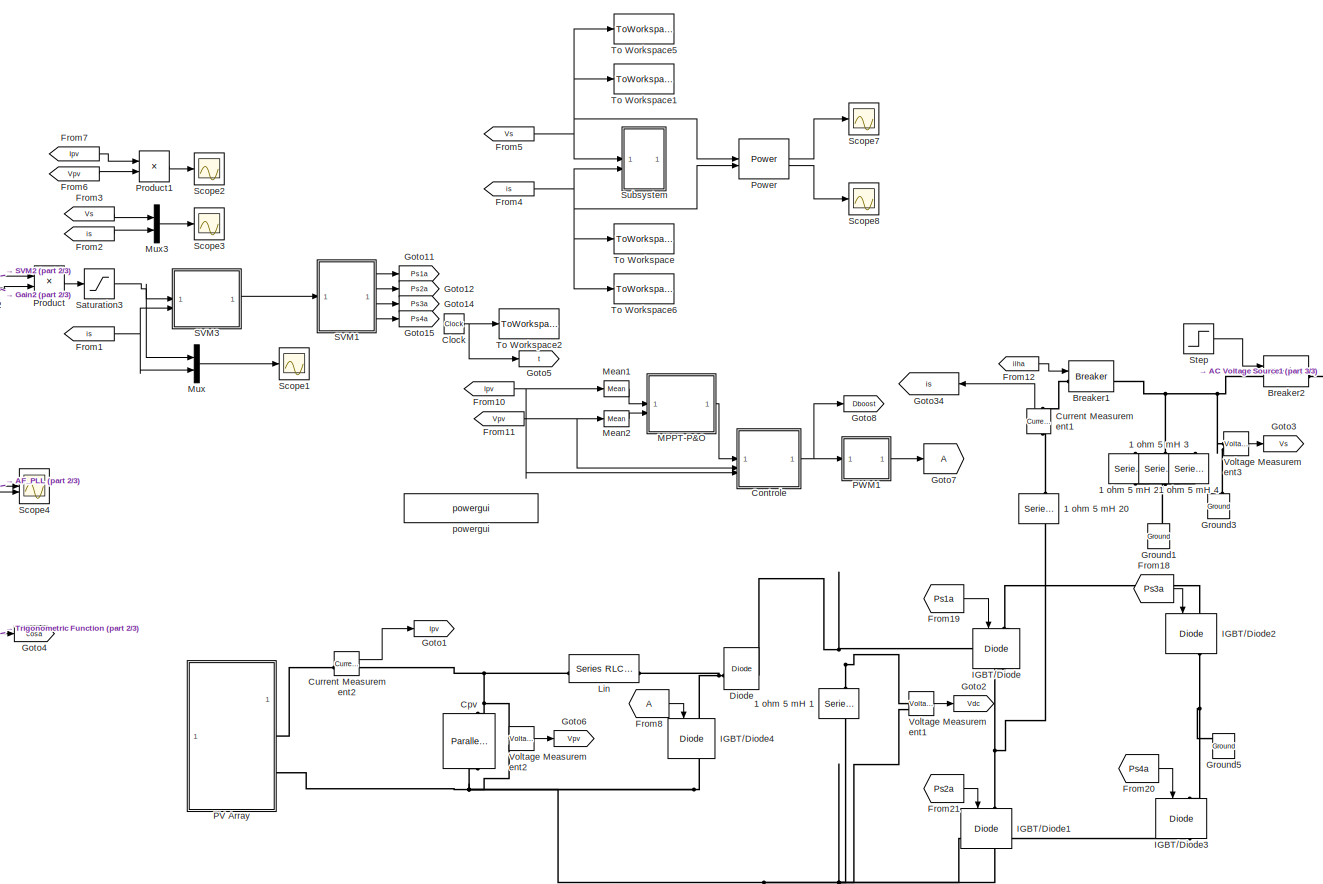
[diagram: root canvas - part 1/3, center side, full height]
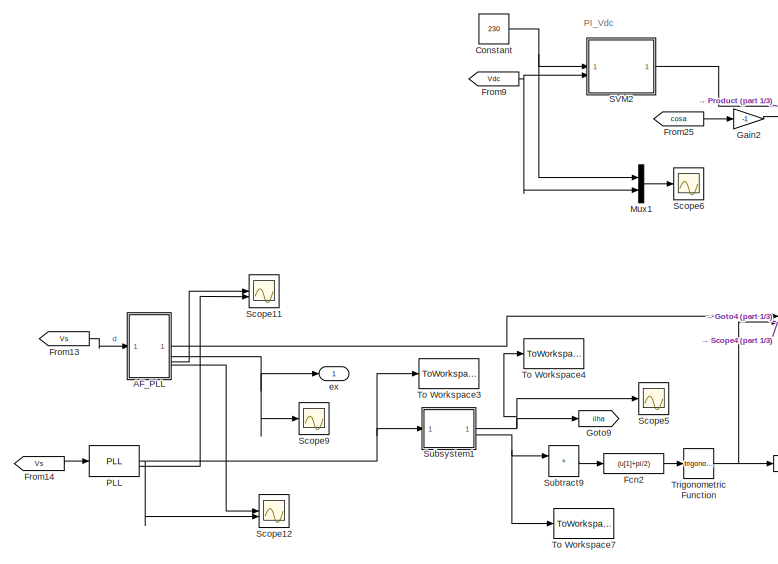
[diagram: root canvas - part 2/3, middle left region]
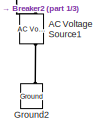
[diagram: root canvas - part 3/3, middle right region]
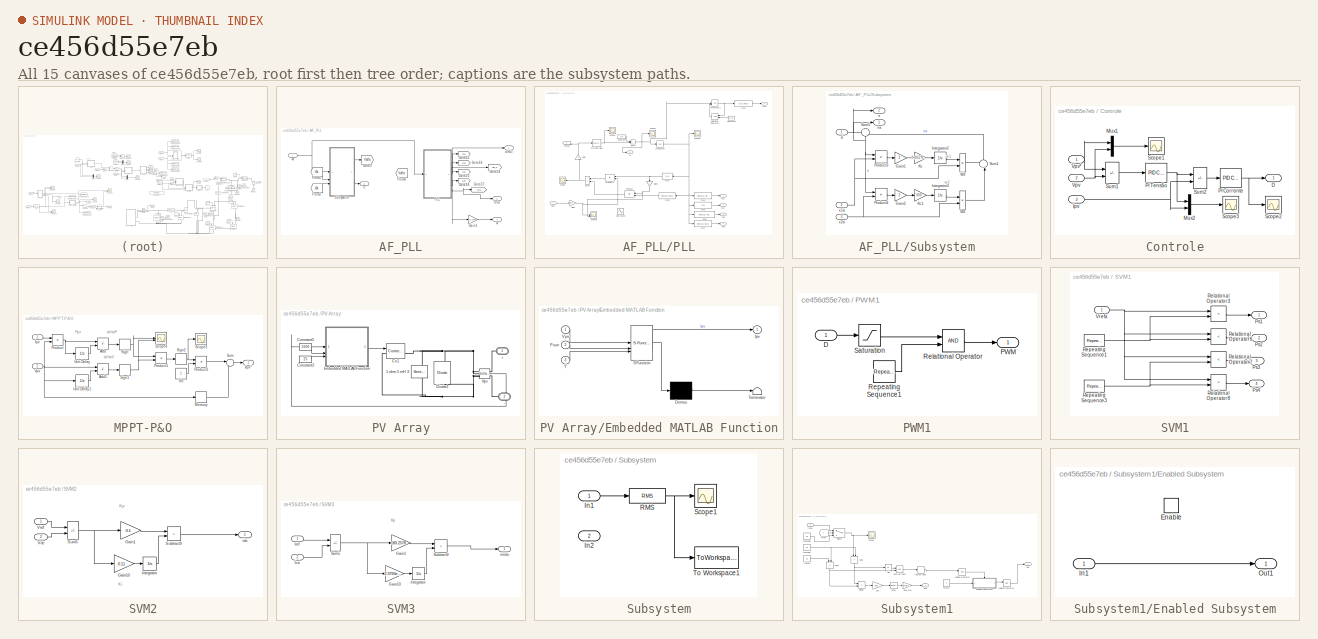
[diagram: thumbnail index - all 15 canvases of the model, root first then tree order]
MODEL slx_ce456d55e7eb
KIND model
CONFIG AbsTol = auto
CONFIG EnableMultiTasking = off
CONFIG FixedStep = auto
CONFIG MaxStep = 0.01
CONFIG MinStep = auto
CONFIG RelTol = 0.1e-3
CONFIG SampleTimeConstraint = Unconstrained
CONFIG SolverName = ode3
CONFIG StartTime = 0
CONFIG StopTime = T
BLOCK [Reference] 1 ohm 5 mH 1  REF=spsSeriesRLCBranchLib/Series RLC Branch
  AttributesFormatString = \n
  LibrarySourceBlock = sps_lib/Passives/Series RLC Branch
  NameLocation = left
  SourceBlock = spsSeriesRLCBranchLib/Series RLC Branch
  SourceType = Series RLC Branch
BLOCK [Reference] 1 ohm 5 mH 2  REF=spsSeriesRLCBranchLib/Series RLC Branch
  AttributesFormatString = \n
  LibrarySourceBlock = sps_lib/Passives/Series RLC Branch
  NameLocation = right
  SourceBlock = spsSeriesRLCBranchLib/Series RLC Branch
  SourceType = Series RLC Branch
BLOCK [Reference] 1 ohm 5 mH 20  REF=spsSeriesRLCBranchLib/Series RLC Branch
  AttributesFormatString = \n
  LibrarySourceBlock = sps_lib/Passives/Series RLC Branch
  NameLocation = right
  SourceBlock = spsSeriesRLCBranchLib/Series RLC Branch
  SourceType = Series RLC Branch
BLOCK [Reference] 1 ohm 5 mH 3  REF=spsSeriesRLCBranchLib/Series RLC Branch
  AttributesFormatString = \n
  LibrarySourceBlock = sps_lib/Passives/Series RLC Branch
  NameLocation = left
  SourceBlock = spsSeriesRLCBranchLib/Series RLC Branch
  SourceType = Series RLC Branch
BLOCK [Reference] 1 ohm 5 mH 4  REF=spsSeriesRLCBranchLib/Series RLC Branch
  AttributesFormatString = \n
  LibrarySourceBlock = sps_lib/Passives/Series RLC Branch
  NameLocation = left
  SourceBlock = spsSeriesRLCBranchLib/Series RLC Branch
  SourceType = Series RLC Branch
BLOCK [Reference] AC Voltage Source1  REF=spsACVoltageSourceLib/AC Voltage Source
  LibrarySourceBlock = sps_lib/Sources/AC Voltage Source
  NameLocation = left
  SourceBlock = spsACVoltageSourceLib/AC Voltage Source
  SourceType = AC Voltage Source
BLOCK [SubSystem] AF_PLL
BLOCK [From] AF_PLL/From1
  GotoTag = x1a
  TagVisibility = global
BLOCK [From] AF_PLL/From2
  GotoTag = x2a
  TagVisibility = global
BLOCK [From] AF_PLL/From4
  GotoTag = Valfa
BLOCK [Gain] AF_PLL/Gain1
  Gain = 1/(2*pi)
  NameLocation = top
BLOCK [Goto] AF_PLL/Goto3
  GotoTag = Valfa
BLOCK [Goto] AF_PLL/Goto35
  GotoTag = x1b
BLOCK [Goto] AF_PLL/Goto36
  GotoTag = x2b
BLOCK [Goto] AF_PLL/Goto37
  GotoTag = teta
BLOCK [Goto] AF_PLL/Goto45
  GotoTag = x1a
  TagVisibility = global
BLOCK [Goto] AF_PLL/Goto46
  GotoTag = x2a
  TagVisibility = global
BLOCK [Goto] AF_PLL/Goto54
  GotoTag = Sen_a
  TagVisibility = global
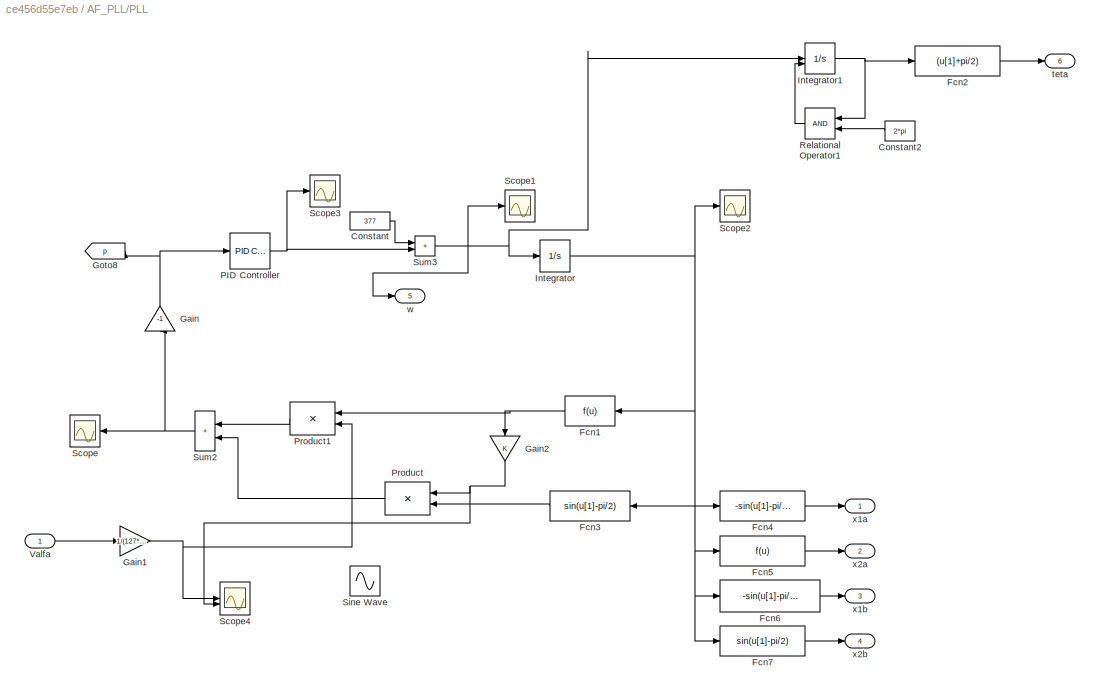
BLOCK [SubSystem] AF_PLL/PLL
BLOCK [Constant] AF_PLL/PLL/Constant
  SampleTime = -1
  Value = 377
BLOCK [Constant] AF_PLL/PLL/Constant2
  NameLocation = top
  Value = 2*pi
BLOCK [Fcn] AF_PLL/PLL/Fcn1
  NameLocation = top
BLOCK [Fcn] AF_PLL/PLL/Fcn2
  Expr = (u[1]+pi/2)
BLOCK [Fcn] AF_PLL/PLL/Fcn3
  Expr = sin(u[1]-pi/2)
  NameLocation = top
BLOCK [Fcn] AF_PLL/PLL/Fcn4
  Expr = -sin(u[1]-pi/2)
BLOCK [Fcn] AF_PLL/PLL/Fcn5
BLOCK [Fcn] AF_PLL/PLL/Fcn6
  Expr = -sin(u[1]-pi/2-pi/2)
BLOCK [Fcn] AF_PLL/PLL/Fcn7
  Expr = sin(u[1]-pi/2)
BLOCK [Gain] AF_PLL/PLL/Gain
  Gain = -1
  NameLocation = left
BLOCK [Gain] AF_PLL/PLL/Gain1
  Gain = 1/(127*sqrt(2))
  NameLocation = top
BLOCK [Gain] AF_PLL/PLL/Gain2
  NameLocation = left
BLOCK [Goto] AF_PLL/PLL/Goto8
  GotoTag = p
  NameLocation = top
BLOCK [Integrator] AF_PLL/PLL/Integrator
BLOCK [Integrator] AF_PLL/PLL/Integrator1
  ExternalReset = rising
  InitialCondition = -pi/2
BLOCK [Reference] AF_PLL/PLL/PID Controller  REF=slpidlib/PID Controller
  SourceBlock = slpidlib/PID Controller
  SourceType = PID 1dof
BLOCK [Product] AF_PLL/PLL/Product
  InputSameDT = on
  NameLocation = top
  OutDataTypeStr = Inherit: Same as first input
  RndMeth = Zero
  SaturateOnIntegerOverflow = on
BLOCK [Product] AF_PLL/PLL/Product1
  InputSameDT = on
  NameLocation = top
  OutDataTypeStr = Inherit: Same as first input
  RndMeth = Zero
  SaturateOnIntegerOverflow = on
BLOCK [RelationalOperator] AF_PLL/PLL/Relational Operator1
  InputSameDT = off
  NameLocation = top
  OutDataTypeStr = boolean
  RndMeth = Simplest
BLOCK [Scope] AF_PLL/PLL/Scope
  Floating = off
  NameLocation = top
  NumInputPorts = 1
  ScopeSpecificationString = Simulink.scopes.TimeScopeBlockCfg('CurrentConfiguration', extmgr.ConfigurationSet(extmgr.Configuration('Core','General UI',true),extmgr.Configuration('Core','Source UI',true),extmgr.Configuration('Sources','WiredSimulink',true,'DataLoggingSaveFormat','StructureWithTime','DataLoggingDecimation','1','DataLoggingDecimateData',true),extmgr.Configuration('Visuals','Time Domain',true,'SerializedDisplays...<+1673ch>
BLOCK [Scope] AF_PLL/PLL/Scope1
  Floating = off
  NumInputPorts = 1
  ScopeSpecificationString = Simulink.scopes.TimeScopeBlockCfg('CurrentConfiguration', extmgr.ConfigurationSet(extmgr.Configuration('Core','General UI',true),extmgr.Configuration('Core','Source UI',true),extmgr.Configuration('Sources','WiredSimulink',true,'DataLoggingSaveFormat','StructureWithTime','DataLoggingLimitDataPoints',true,'DataLoggingDecimation','1','DataLoggingDecimateData',true,'DataLoggingVariableName','ScopeData...<+1760ch>
BLOCK [Scope] AF_PLL/PLL/Scope2
  Floating = off
  NumInputPorts = 1
  ScopeSpecificationString = Simulink.scopes.TimeScopeBlockCfg('CurrentConfiguration', extmgr.ConfigurationSet(extmgr.Configuration('Core','General UI',true),extmgr.Configuration('Core','Source UI',true),extmgr.Configuration('Sources','WiredSimulink',true,'DataLoggingSaveFormat','StructureWithTime','DataLoggingLimitDataPoints',true,'DataLoggingDecimation','1','DataLoggingDecimateData',true,'DataLoggingVariableName','ScopeData...<+1731ch>
BLOCK [Scope] AF_PLL/PLL/Scope3
  Floating = off
  NumInputPorts = 1
  ScopeSpecificationString = Simulink.scopes.TimeScopeBlockCfg('CurrentConfiguration', extmgr.ConfigurationSet(extmgr.Configuration('Core','General UI',true),extmgr.Configuration('Core','Source UI',true),extmgr.Configuration('Sources','WiredSimulink',true,'DataLoggingSaveFormat','StructureWithTime','DataLoggingLimitDataPoints',true,'DataLoggingDecimation','1','DataLoggingDecimateData',true,'DataLoggingVariableName','ScopeData...<+1743ch>
BLOCK [Scope] AF_PLL/PLL/Scope4
  Floating = off
  NumInputPorts = 2
  ScopeSpecificationString = Simulink.scopes.TimeScopeBlockCfg('CurrentConfiguration', extmgr.ConfigurationSet(extmgr.Configuration('Core','General UI',true),extmgr.Configuration('Core','Source UI',true),extmgr.Configuration('Sources','WiredSimulink',true,'DataLoggingSaveFormat','StructureWithTime','DataLoggingDecimation','1','DataLoggingDecimateData',true,'DataLoggingVariableName','ScopeData8'),extmgr.Configuration('Visuals'...<+1669ch>
BLOCK [Sin] AF_PLL/PLL/Sine Wave
  Frequency = 2*pi*60
  SampleTime = 0
BLOCK [Sum] AF_PLL/PLL/Sum2
  IconShape = rectangular
  InputSameDT = on
  NameLocation = top
  OutDataTypeStr = Inherit: Same as first input
  SaturateOnIntegerOverflow = on
BLOCK [Sum] AF_PLL/PLL/Sum3
  IconShape = rectangular
  InputSameDT = on
  OutDataTypeStr = Inherit: Same as first input
  SaturateOnIntegerOverflow = on
BLOCK [Inport] AF_PLL/PLL/Valfa
BLOCK [Outport] AF_PLL/PLL/teta
  Port = 6
BLOCK [Outport] AF_PLL/PLL/w
  Port = 5
BLOCK [Outport] AF_PLL/PLL/x1a
BLOCK [Outport] AF_PLL/PLL/x1b
  Port = 3
BLOCK [Outport] AF_PLL/PLL/x2a
  Port = 2
BLOCK [Outport] AF_PLL/PLL/x2b
  Port = 4
BLOCK [SubSystem] AF_PLL/Subsystem
BLOCK [Gain] AF_PLL/Subsystem/Gain1
  Gain = 2
BLOCK [Gain] AF_PLL/Subsystem/Gain2
  Gain = 2
BLOCK [Integrator] AF_PLL/Subsystem/Integrator2
BLOCK [Integrator] AF_PLL/Subsystem/Integrator3
BLOCK [Gain] AF_PLL/Subsystem/Kc
  Gain = 0.005*60e3
BLOCK [Gain] AF_PLL/Subsystem/Kc1
  Gain = 300
BLOCK [Product] AF_PLL/Subsystem/Product3
BLOCK [Product] AF_PLL/Subsystem/Product4
BLOCK [Sum] AF_PLL/Subsystem/Sum1
  Inputs = ++|
  NameLocation = right
BLOCK [Sum] AF_PLL/Subsystem/Sum5
  Inputs = +-
  NameLocation = left
BLOCK [Product] AF_PLL/Subsystem/W2
BLOCK [Product] AF_PLL/Subsystem/W3
BLOCK [Inport] AF_PLL/Subsystem/d
BLOCK [Outport] AF_PLL/Subsystem/e
  Port = 2
BLOCK [Outport] AF_PLL/Subsystem/va
BLOCK [Inport] AF_PLL/Subsystem/x1a
  Port = 2
BLOCK [Inport] AF_PLL/Subsystem/x2a
  Port = 3
BLOCK [Outport] AF_PLL/cosa2
BLOCK [Outport] AF_PLL/e
  Port = 2
BLOCK [Outport] AF_PLL/teta
  Port = 3
BLOCK [Inport] AF_PLL/va
BLOCK [Outport] AF_PLL/w
  Port = 4
BLOCK [Reference] Breaker1  REF=spsBreakerLib/Breaker
  LibrarySourceBlock = sps_lib/Power Grid Elements/Breaker
  SourceBlock = spsBreakerLib/Breaker
  SourceType = Breaker
BLOCK [Reference] Breaker2  REF=spsBreakerLib/Breaker
  LibrarySourceBlock = sps_lib/Power Grid Elements/Breaker
  SourceBlock = spsBreakerLib/Breaker
  SourceType = Breaker
BLOCK [Clock] Clock
  Decimation = 1
BLOCK [Constant] Constant
  SampleTime = -1
  Value = 230
BLOCK [SubSystem] Controle
BLOCK [Outport] Controle/D
BLOCK [Inport] Controle/Ipv
  Port = 3
BLOCK [Mux] Controle/Mux1
  DisplayOption = bar
  Inputs = 2
BLOCK [Mux] Controle/Mux2
  DisplayOption = bar
  Inputs = 2
BLOCK [Reference] Controle/PI Corrente  REF=slpidlib/PID Controller
  SourceBlock = slpidlib/PID Controller
  SourceType = PID 1dof
BLOCK [Reference] Controle/PI Tensão  REF=slpidlib/PID Controller
  SourceBlock = slpidlib/PID Controller
  SourceType = PID 1dof
BLOCK [Scope] Controle/Scope1
  Floating = off
  NumInputPorts = 1
  ScopeSpecificationString = C++SS(StrPVP('Location','[11, 61, 806, 606]'),StrPVP('Open','off'),MxPVP('AxesTitles',54,'struct(''axes1'',''%<SignalLabel>'')'),MxPVP('ScopeGraphics',57,'struct(''FigureColor'',''[0.501960784313725 0.501960784313725 0.501960784313725]'',''AxesColor'',''[1 1 1]'',''AxesTickColor'',''[0 0 0]'',''LineColors'',''[0 0 1;1 0 1;0 1 1;1 0 0;0 1 0;0 0 1]'',''LineStyles'',''-|-|-|-|-|-'',''LineWidths'',''[...<+365ch>
BLOCK [Scope] Controle/Scope2
  Floating = off
  NumInputPorts = 1
  ScopeSpecificationString = Simulink.scopes.TimeScopeBlockCfg('CurrentConfiguration', extmgr.ConfigurationSet(extmgr.Configuration('Core','General UI',true,'FigureColor',[0.501960784313725 0.501960784313725 0.501960784313725]),extmgr.Configuration('Core','Source UI',true),extmgr.Configuration('Sources','WiredSimulink',true,'DataLogging',true,'DataLoggingVariableName','inc3','DataLoggingSaveFormat','Array','DataLoggingDecimat...<+2869ch>
BLOCK [Scope] Controle/Scope3
  Floating = off
  NumInputPorts = 1
  ScopeSpecificationString = C++SS(StrPVP('Location','[12, 63, 803, 606]'),StrPVP('Open','off'),MxPVP('AxesTitles',54,'struct(''axes1'',''%<SignalLabel>'')'),MxPVP('ScopeGraphics',57,'struct(''FigureColor'',''[0.501960784313725 0.501960784313725 0.501960784313725]'',''AxesColor'',''[1 1 1]'',''AxesTickColor'',''[0 0 0]'',''LineColors'',''[0 0 1;1 0 1;0 1 1;1 0 0;0 1 0;0 0 1]'',''LineStyles'',''-|-|-|-|-|-'',''LineWidths'',''[...<+365ch>
BLOCK [Sum] Controle/Sum1
  IconShape = rectangular
  InputSameDT = on
  Inputs = -+
  OutDataTypeStr = Inherit: Same as first input
  SaturateOnIntegerOverflow = on
BLOCK [Sum] Controle/Sum2
  IconShape = rectangular
  InputSameDT = on
  Inputs = +-
  OutDataTypeStr = Inherit: Same as first input
  SaturateOnIntegerOverflow = on
BLOCK [Inport] Controle/Vpv
  Port = 2
BLOCK [Inport] Controle/Vpv*
BLOCK [Reference] Cpv  REF=spsParallelRLCBranchLib/Parallel RLC Branch
  AttributesFormatString = \n
  LibrarySourceBlock = sps_lib/Passives/Parallel RLC Branch
  NameLocation = left
  SourceBlock = spsParallelRLCBranchLib/Parallel RLC Branch
  SourceType = Parallel RLC Branch
BLOCK [Reference] Current Measurement1  REF=spsCurrentMeasurementLib/Current Measurement
  LibrarySourceBlock = sps_lib/Sensors and Measurements/Current Measurement
  NameLocation = right
  SourceBlock = spsCurrentMeasurementLib/Current Measurement
  SourceType = Current Measurement
BLOCK [Reference] Current Measurement2  REF=spsCurrentMeasurementLib/Current Measurement
  LibrarySourceBlock = sps_lib/Sensors and Measurements/Current Measurement
  SourceBlock = spsCurrentMeasurementLib/Current Measurement
  SourceType = Current Measurement
BLOCK [Reference] Diode  REF=spsDiodeLib/Diode
  LibrarySourceBlock = sps_lib/Power Electronics/Diode
  SourceBlock = spsDiodeLib/Diode
  SourceType = Diode
BLOCK [Fcn] Fcn2
  Expr = (u[1]+pi/2)
BLOCK [From] From1
  GotoTag = is
BLOCK [From] From10
  GotoTag = Ipv
BLOCK [From] From11
  GotoTag = Vpv
BLOCK [From] From12
  GotoTag = ilha
BLOCK [From] From13
  GotoTag = Vs
BLOCK [From] From14
  GotoTag = Vs
BLOCK [From] From18
  GotoTag = Ps3a
BLOCK [From] From19
  GotoTag = Ps1a
BLOCK [From] From2
  GotoTag = is
BLOCK [From] From20
  GotoTag = Ps4a
BLOCK [From] From21
  GotoTag = Ps2a
BLOCK [From] From25
  GotoTag = cosa
BLOCK [From] From3
  GotoTag = Vs
BLOCK [From] From4
  GotoTag = is
BLOCK [From] From5
  GotoTag = Vs
BLOCK [From] From6
  GotoTag = Vpv
BLOCK [From] From7
  GotoTag = Ipv
BLOCK [From] From8
  NameLocation = top
BLOCK [From] From9
  GotoTag = Vdc
BLOCK [Gain] Gain2
  Gain = -1
BLOCK [Goto] Goto1
  GotoTag = Ipv
BLOCK [Goto] Goto11
  GotoTag = Ps1a
BLOCK [Goto] Goto12
  GotoTag = Ps2a
BLOCK [Goto] Goto14
  GotoTag = Ps3a
BLOCK [Goto] Goto15
  GotoTag = Ps4a
BLOCK [Goto] Goto2
  GotoTag = Vdc
BLOCK [Goto] Goto3
  GotoTag = Vs
BLOCK [Goto] Goto34
  GotoTag = is
  NameLocation = top
BLOCK [Goto] Goto4
  GotoTag = cosa
BLOCK [Goto] Goto5
  GotoTag = t
  TagVisibility = global
BLOCK [Goto] Goto6
  GotoTag = Vpv
BLOCK [Goto] Goto7
BLOCK [Goto] Goto8
  GotoTag = Dboost
BLOCK [Goto] Goto9
  GotoTag = ilha
BLOCK [Reference] Ground1  REF=spsGroundLib/Ground
  LibrarySourceBlock = sps_lib/Utilities/Ground
  NameLocation = right
  SourceBlock = spsGroundLib/Ground
  SourceType = Ground
BLOCK [Reference] Ground2  REF=spsGroundLib/Ground
  LibrarySourceBlock = sps_lib/Utilities/Ground
  NameLocation = right
  SourceBlock = spsGroundLib/Ground
  SourceType = Ground
BLOCK [Reference] Ground3  REF=spsGroundLib/Ground
  LibrarySourceBlock = sps_lib/Utilities/Ground
  NameLocation = right
  SourceBlock = spsGroundLib/Ground
  SourceType = Ground
BLOCK [Reference] Ground5  REF=spsGroundLib/Ground
  LibrarySourceBlock = sps_lib/Utilities/Ground
  NameLocation = right
  SourceBlock = spsGroundLib/Ground
  SourceType = Ground
BLOCK [Reference] IGBT//Diode  REF=spsIGBTDiodeLib/IGBT//Diode
  LibrarySourceBlock = sps_lib/Power Electronics/IGBT//Diode
  NameLocation = left
  SourceBlock = spsIGBTDiodeLib/IGBT//Diode
  SourceType = IGBT/Diode
BLOCK [Reference] IGBT//Diode1  REF=spsIGBTDiodeLib/IGBT//Diode
  LibrarySourceBlock = sps_lib/Power Electronics/IGBT//Diode
  NameLocation = left
  SourceBlock = spsIGBTDiodeLib/IGBT//Diode
  SourceType = IGBT/Diode
BLOCK [Reference] IGBT//Diode2  REF=spsIGBTDiodeLib/IGBT//Diode
  LibrarySourceBlock = sps_lib/Power Electronics/IGBT//Diode
  NameLocation = left
  SourceBlock = spsIGBTDiodeLib/IGBT//Diode
  SourceType = IGBT/Diode
BLOCK [Reference] IGBT//Diode3  REF=spsIGBTDiodeLib/IGBT//Diode
  LibrarySourceBlock = sps_lib/Power Electronics/IGBT//Diode
  NameLocation = left
  SourceBlock = spsIGBTDiodeLib/IGBT//Diode
  SourceType = IGBT/Diode
BLOCK [Reference] IGBT//Diode4  REF=spsIGBTDiodeLib/IGBT//Diode
  LibrarySourceBlock = sps_lib/Power Electronics/IGBT//Diode
  NameLocation = left
  SourceBlock = spsIGBTDiodeLib/IGBT//Diode
  SourceType = IGBT/Diode
BLOCK [Reference] Lin  REF=spsSeriesRLCBranchLib/Series RLC Branch
  LibrarySourceBlock = sps_lib/Passives/Series RLC Branch
  SourceBlock = spsSeriesRLCBranchLib/Series RLC Branch
  SourceType = Series RLC Branch
BLOCK [SubSystem] MPPT-P&O
BLOCK [Sum] MPPT-P&O/Add
  IconShape = rectangular
  Inputs = +-
BLOCK [Sum] MPPT-P&O/Add1
  IconShape = rectangular
  Inputs = +-
BLOCK [Constant] MPPT-P&O/Inc
BLOCK [Inport] MPPT-P&O/Ipv
  NameLocation = top
BLOCK [Memory] MPPT-P&O/Memory
  InheritSampleTime = on
BLOCK [Product] MPPT-P&O/Product
BLOCK [Product] MPPT-P&O/Product1
BLOCK [Product] MPPT-P&O/Product2
BLOCK [Scope] MPPT-P&O/Scope3
  Floating = off
  NumInputPorts = 1
  ScopeSpecificationString = Simulink.scopes.TimeScopeBlockCfg('CurrentConfiguration', extmgr.ConfigurationSet(extmgr.Configuration('Core','General UI',true,'FigureColor',[0.501960784313725 0.501960784313725 0.501960784313725]),extmgr.Configuration('Core','Source UI',true),extmgr.Configuration('Sources','WiredSimulink',true,'DataLoggingSaveFormat','Array','DataLoggingDecimation','1','DataLoggingDecimateData',true),extmgr.Conf...<+2741ch>
BLOCK [Scope] MPPT-P&O/Scope4
  Floating = off
  NumInputPorts = 2
  ScopeSpecificationString = C++SS(StrPVP('Location','[10, 60, 1364, 738]'),StrPVP('Open','off'),StrPVP('ZoomMode','xonly'),MxPVP('AxesTitles',54,'struct(''axes1'',''%<SignalLabel>'',''axes2'',''%<SignalLabel>'')'),MxPVP('ScopeGraphics',57,'struct(''FigureColor'',''[0.501960784313725 0.501960784313725 0.501960784313725]'',''AxesColor'',''[1 1 1]'',''AxesTickColor'',''[0 0 0]'',''LineColors'',''[0 0 1;1 0 1;0 1 1;1 0 0;0 1 0;0...<+336ch>
BLOCK [Signum] MPPT-P&O/Sign
BLOCK [Signum] MPPT-P&O/Sign1
BLOCK [Signum] MPPT-P&O/Sign2
BLOCK [Sum] MPPT-P&O/Sum
  Inputs = |++
BLOCK [UnitDelay] MPPT-P&O/Unit Delay
  HasFrameUpgradeWarning = on
  SampleTime = -1
BLOCK [UnitDelay] MPPT-P&O/Unit Delay1
  HasFrameUpgradeWarning = on
  SampleTime = -1
BLOCK [Inport] MPPT-P&O/Vpv
  Port = 2
BLOCK [Outport] MPPT-P&O/Vpv*
BLOCK [Reference] Mean1  REF=spsMeanLib/Mean
  LibrarySourceBlock = sps_lib/Sensors and Measurements/Mean
  SourceBlock = spsMeanLib/Mean
  SourceType = Mean
BLOCK [Reference] Mean2  REF=spsMeanLib/Mean
  LibrarySourceBlock = sps_lib/Sensors and Measurements/Mean
  SourceBlock = spsMeanLib/Mean
  SourceType = Mean
BLOCK [Mux] Mux
  DisplayOption = bar
  Inputs = 2
BLOCK [Mux] Mux1
  DisplayOption = bar
  Inputs = 2
BLOCK [Mux] Mux3
  DisplayOption = bar
  Inputs = 2
BLOCK [Reference] PLL  REF=spsPLLLib/PLL
  LibrarySourceBlock = sps_lib/Control/PLL
  SourceBlock = spsPLLLib/PLL
  SourceType = PLL
BLOCK [SubSystem] PV Array
BLOCK [PMIOPort] PV Array/+
  NameLocation = top
  Side = Right
  Tag = PMCPort
BLOCK [PMIOPort] PV Array/-
  NameLocation = top
  Port = 2
  Side = Right
  Tag = PMCPort
BLOCK [Reference] PV Array/1 ohm 5 mH 3  REF=spsSeriesRLCBranchLib/Series RLC Branch
  AttributesFormatString = \n
  LibrarySourceBlock = sps_lib/Passives/Series RLC Branch
  NameLocation = left
  SourceBlock = spsSeriesRLCBranchLib/Series RLC Branch
  SourceType = Series RLC Branch
BLOCK [Constant] PV Array/Constant3
  Value = 25
BLOCK [Constant] PV Array/Constant5
  Value = 1000
BLOCK [Reference] PV Array/Cs1  REF=spsControlledCurrentSourceLib/Controlled Current Source
  LibrarySourceBlock = sps_lib/Sources/Controlled Current Source
  SourceBlock = spsControlledCurrentSourceLib/Controlled Current Source
  SourceType = Controlled Current Source
BLOCK [Reference] PV Array/Diode2  REF=spsDiodeLib/Diode
  LibrarySourceBlock = sps_lib/Power Electronics/Diode
  NameLocation = right
  SourceBlock = spsDiodeLib/Diode
  SourceType = Diode
BLOCK [SubSystem] PV Array/Embedded MATLAB Function
  ErrorFcn = Stateflow.Translate.translate
  PermitHierarchicalResolution = ExplicitOnly
  SFBlockType = MATLAB Function
  TreatAsAtomicUnit = on
BLOCK [Demux] PV Array/Embedded MATLAB Function/ Demux 
  Outputs = 1
BLOCK [S-Function] PV Array/Embedded MATLAB Function/ SFunction 
  EnableBusSupport = off
  FunctionName = sf_sfun
  PortCounts = [3 2]
  SFcnIsStateOwnerBlock = off
  SFunctionDeploymentMode = off
  Tag = Stateflow S-Function 2
BLOCK [Terminator] PV Array/Embedded MATLAB Function/ Terminator 
BLOCK [Outport] PV Array/Embedded MATLAB Function/Ipv
BLOCK [Inport] PV Array/Embedded MATLAB Function/Psun
  Port = 2
BLOCK [Inport] PV Array/Embedded MATLAB Function/T
  Port = 3
BLOCK [Inport] PV Array/Embedded MATLAB Function/Vpv
BLOCK [Reference] PV Array/Vpv  REF=spsVoltageMeasurementLib/Voltage Measurement
  LibrarySourceBlock = sps_lib/Sensors and Measurements/Voltage Measurement
  SourceBlock = spsVoltageMeasurementLib/Voltage Measurement
  SourceType = Voltage Measurement
BLOCK [SubSystem] PWM1
BLOCK [Inport] PWM1/D
BLOCK [Outport] PWM1/PWM
BLOCK [RelationalOperator] PWM1/Relational Operator
  InputSameDT = off
  OutDataTypeStr = boolean
BLOCK [Reference] PWM1/Repeating Sequence1  REF=simulink/Sources/Repeating
Sequence
  SourceBlock = simulink/Sources/Repeating\nSequence
  SourceType = Repeating table
BLOCK [Saturate] PWM1/Saturation
  LowerLimit = 0
  UpperLimit = 1
BLOCK [Reference] Power  REF=spsPowerLib/Power
  LibrarySourceBlock = sps_lib/Sensors and Measurements/Power
  SourceBlock = spsPowerLib/Power
  SourceType = Power
BLOCK [Product] Product
  RndMeth = Zero
BLOCK [Product] Product1
  RndMeth = Zero
BLOCK [SubSystem] SVM1
BLOCK [Outport] SVM1/Ps1
BLOCK [Outport] SVM1/Ps2
  Port = 2
BLOCK [Outport] SVM1/Ps3
  Port = 3
BLOCK [Outport] SVM1/Ps4
  Port = 4
BLOCK [RelationalOperator] SVM1/Relational Operator3
  InputSameDT = off
  Operator = >
  OutDataTypeStr = boolean
BLOCK [RelationalOperator] SVM1/Relational Operator6
  InputSameDT = off
  Operator = <
  OutDataTypeStr = boolean
BLOCK [RelationalOperator] SVM1/Relational Operator7
  InputSameDT = off
  Operator = <
  OutDataTypeStr = boolean
BLOCK [RelationalOperator] SVM1/Relational Operator8
  InputSameDT = off
  Operator = >
  OutDataTypeStr = boolean
BLOCK [Reference] SVM1/Repeating Sequence1  REF=simulink/Sources/Repeating
Sequence
  SourceBlock = simulink/Sources/Repeating\nSequence
  SourceType = Repeating table
BLOCK [Reference] SVM1/Repeating Sequence3  REF=simulink/Sources/Repeating
Sequence
  SourceBlock = simulink/Sources/Repeating\nSequence
  SourceType = Repeating table
BLOCK [Inport] SVM1/Vrefa
BLOCK [SubSystem] SVM2
BLOCK [Gain] SVM2/Gain1
  Gain = 0.1
BLOCK [Gain] SVM2/Gain10
  Gain = 0.11
BLOCK [Integrator] SVM2/Integrator
BLOCK [Sum] SVM2/Subtract9
  IconShape = rectangular
BLOCK [Sum] SVM2/Sum5
  IconShape = rectangular
  InputSameDT = on
  Inputs = +-
  OutDataTypeStr = Inherit: Same as first input
  SaturateOnIntegerOverflow = on
BLOCK [Inport] SVM2/Vdc
  Port = 2
BLOCK [Inport] SVM2/Vref
BLOCK [Outport] SVM2/idc
BLOCK [SubSystem] SVM3
BLOCK [Gain] SVM3/Gain1
  Gain = 180.2578
BLOCK [Gain] SVM3/Gain10
  Gain = 2.3793e+04
BLOCK [Inport] SVM3/Ica
  Port = 2
BLOCK [Integrator] SVM3/Integrator
BLOCK [Inport] SVM3/Iref
BLOCK [Sum] SVM3/Subtract9
  IconShape = rectangular
BLOCK [Sum] SVM3/Sum5
  IconShape = rectangular
  InputSameDT = on
  Inputs = +-
  OutDataTypeStr = Inherit: Same as first input
  SaturateOnIntegerOverflow = on
BLOCK [Outport] SVM3/modu
BLOCK [Saturate] Saturation3
  LinearizeAsGain = off
  LowerLimit = -100
  UpperLimit = 1000
BLOCK [Scope] Scope1
  Floating = off
  NumInputPorts = 1
  ScopeSpecificationString = Simulink.scopes.TimeScopeBlockCfg('CurrentConfiguration', extmgr.ConfigurationSet(extmgr.Configuration('Core','General UI',true,'FigureColor',[1 1 1]),extmgr.Configuration('Core','Source UI',true),extmgr.Configuration('Sources','WiredSimulink',true,'DataLoggingSaveFormat','StructureWithTime','DataLoggingDecimation','100','DataLoggingDecimateData',true),extmgr.Configuration('Visuals','Time Domain',...<+2928ch>
BLOCK [Scope] Scope11
  Floating = off
  NumInputPorts = 2
  ScopeSpecificationString = Simulink.scopes.TimeScopeBlockCfg('CurrentConfiguration', extmgr.ConfigurationSet(extmgr.Configuration('Core','General UI',true,'FigureColor',[1 1 1]),extmgr.Configuration('Core','Source UI',true),extmgr.Configuration('Sources','WiredSimulink',true,'DataLoggingVariableName','ScopeData4','DataLoggingSaveFormat','StructureWithTime','DataLoggingDecimation','100','DataLoggingDecimateData',true),extmgr...<+2917ch>
BLOCK [Scope] Scope12
  Floating = off
  NumInputPorts = 2
  ScopeSpecificationString = Simulink.scopes.TimeScopeBlockCfg('CurrentConfiguration', extmgr.ConfigurationSet(extmgr.Configuration('Core','General UI',true,'FigureColor',[1 1 1]),extmgr.Configuration('Core','Source UI',true),extmgr.Configuration('Sources','WiredSimulink',true,'DataLoggingVariableName','ScopeData1','DataLoggingSaveFormat','StructureWithTime','DataLoggingDecimation','100','DataLoggingDecimateData',true),extmgr...<+2950ch>
BLOCK [Scope] Scope2
  Floating = off
  NumInputPorts = 1
  ScopeSpecificationString = Simulink.scopes.TimeScopeBlockCfg('CurrentConfiguration', extmgr.ConfigurationSet(extmgr.Configuration('Core','General UI',true,'FigureColor',[1 1 1]),extmgr.Configuration('Core','Source UI',true),extmgr.Configuration('Sources','WiredSimulink',true,'DataLoggingVariableName','ScopeData1','DataLoggingSaveFormat','StructureWithTime','DataLoggingDecimation','1','DataLoggingDecimateData',true),extmgr.C...<+2890ch>
BLOCK [Scope] Scope3
  Floating = off
  NumInputPorts = 1
  ScopeSpecificationString = Simulink.scopes.TimeScopeBlockCfg('CurrentConfiguration', extmgr.ConfigurationSet(extmgr.Configuration('Core','General UI',true,'FigureColor',[1 1 1]),extmgr.Configuration('Core','Source UI',true),extmgr.Configuration('Sources','WiredSimulink',true,'DataLoggingVariableName','ScopeData2','DataLoggingSaveFormat','StructureWithTime','DataLoggingDecimation','1','DataLoggingDecimateData',true),extmgr.C...<+2981ch>
BLOCK [Scope] Scope4
  Floating = off
  NumInputPorts = 2
  ScopeSpecificationString = Simulink.scopes.TimeScopeBlockCfg('CurrentConfiguration', extmgr.ConfigurationSet(extmgr.Configuration('Core','General UI',true,'FigureColor',[1 1 1]),extmgr.Configuration('Core','Source UI',true),extmgr.Configuration('Sources','WiredSimulink',true,'DataLoggingVariableName','ScopeData1','DataLoggingSaveFormat','StructureWithTime','DataLoggingDecimation','100','DataLoggingDecimateData',true),extmgr...<+2915ch>
BLOCK [Scope] Scope5
  Floating = off
  NumInputPorts = 1
  ScopeSpecificationString = Simulink.scopes.TimeScopeBlockCfg('CurrentConfiguration', extmgr.ConfigurationSet(extmgr.Configuration('Core','General UI',true,'FigureColor',[1 1 1]),extmgr.Configuration('Core','Source UI',true),extmgr.Configuration('Sources','WiredSimulink',true,'DataLoggingVariableName','ScopeData11','DataLoggingSaveFormat','StructureWithTime','DataLoggingDecimation','100','DataLoggingDecimateData',true),extmg...<+2880ch>
BLOCK [Scope] Scope6
  Floating = off
  NumInputPorts = 1
  ScopeSpecificationString = Simulink.scopes.TimeScopeBlockCfg('CurrentConfiguration', extmgr.ConfigurationSet(extmgr.Configuration('Core','General UI',true,'FigureColor',[1 1 1]),extmgr.Configuration('Core','Source UI',true),extmgr.Configuration('Sources','WiredSimulink',true,'DataLoggingVariableName','ScopeData6','DataLoggingSaveFormat','StructureWithTime','DataLoggingDecimation','100','DataLoggingDecimateData',true),extmgr...<+2969ch>
BLOCK [Scope] Scope7
  Floating = off
  NumInputPorts = 1
  ScopeSpecificationString = Simulink.scopes.TimeScopeBlockCfg('CurrentConfiguration', extmgr.ConfigurationSet(extmgr.Configuration('Core','General UI',true,'FigureColor',[1 1 1]),extmgr.Configuration('Core','Source UI',true),extmgr.Configuration('Sources','WiredSimulink',true,'DataLoggingVariableName','ScopeData5','DataLoggingSaveFormat','StructureWithTime','DataLoggingDecimation','100','DataLoggingDecimateData',true),extmgr...<+2915ch>
BLOCK [Scope] Scope8
  Floating = off
  NumInputPorts = 1
  ScopeSpecificationString = Simulink.scopes.TimeScopeBlockCfg('CurrentConfiguration', extmgr.ConfigurationSet(extmgr.Configuration('Core','General UI',true,'FigureColor',[1 1 1]),extmgr.Configuration('Core','Source UI',true),extmgr.Configuration('Sources','WiredSimulink',true,'DataLoggingVariableName','ScopeData7','DataLoggingSaveFormat','StructureWithTime','DataLoggingDecimation','100','DataLoggingDecimateData',true),extmgr...<+2723ch>
BLOCK [Scope] Scope9
  Floating = off
  NumInputPorts = 1
  ScopeSpecificationString = Simulink.scopes.TimeScopeBlockCfg('CurrentConfiguration', extmgr.ConfigurationSet(extmgr.Configuration('Core','General UI',true,'FigureColor',[1 1 1]),extmgr.Configuration('Core','Source UI',true),extmgr.Configuration('Sources','WiredSimulink',true,'DataLoggingVariableName','ScopeData2','DataLoggingSaveFormat','StructureWithTime','DataLoggingDecimation','100','DataLoggingDecimateData',true),extmgr...<+4199ch>
BLOCK [Step] Step
  After = 0
  Before = 1
  SampleTime = 0
  Time = 3
BLOCK [SubSystem] Subsystem
BLOCK [Inport] Subsystem/In1
BLOCK [Inport] Subsystem/In2
  Port = 2
BLOCK [Reference] Subsystem/RMS  REF=spsRMSLib/RMS
  LibrarySourceBlock = sps_lib/Sensors and Measurements/RMS
  SourceBlock = spsRMSLib/RMS
  SourceType = RMS
BLOCK [Scope] Subsystem/Scope1
  Floating = off
  NumInputPorts = 1
  ScopeSpecificationString = C++SS(StrPVP('Location','[11, 60, 811, 571]'),StrPVP('Open','off'),StrPVP('ZoomMode','xonly'),MxPVP('AxesTitles',54,'struct(''axes1'',''%<SignalLabel>'')'),MxPVP('ScopeGraphics',57,'struct(''FigureColor'',''[1 1 1]'',''AxesColor'',''[0.941176470588235 0.941176470588235 0.941176470588235]'',''AxesTickColor'',''[0 0 0]'',''LineColors'',''[0 0 1;1 0 0;0 1 1;1 0 0;0 1 0;0 0 1]'',''LineStyles'',''-|-|-...<+386ch>
BLOCK [ToWorkspace] Subsystem/To Workspace1
  Decimation = 100
  FixptAsFi = on
  MaxDataPoints = inf
  SampleTime = -1
  VariableName = vsef
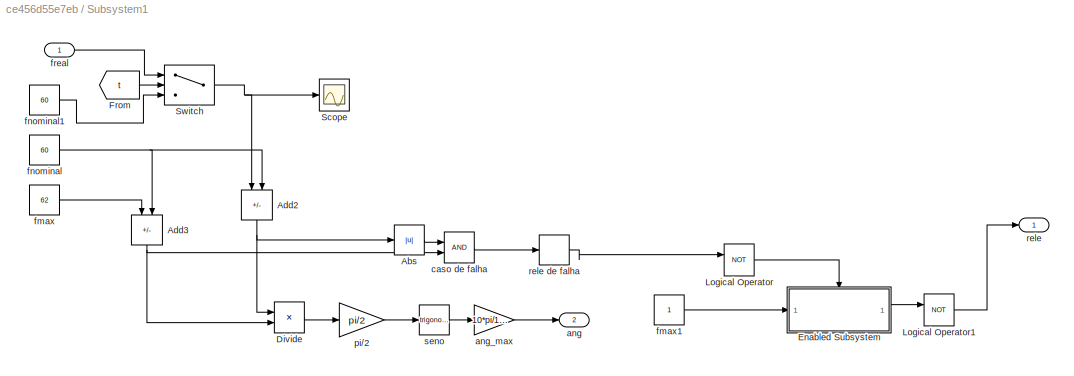
BLOCK [SubSystem] Subsystem1
BLOCK [Abs] Subsystem1/Abs
  SaturateOnIntegerOverflow = off
BLOCK [Sum] Subsystem1/Add2
  IconShape = rectangular
  Inputs = +-
  NameLocation = right
BLOCK [Sum] Subsystem1/Add3
  IconShape = rectangular
  Inputs = +-
  NameLocation = right
BLOCK [Product] Subsystem1/Divide
  Inputs = */
BLOCK [SubSystem] Subsystem1/Enabled Subsystem
  TreatAsAtomicUnit = on
BLOCK [EnablePort] Subsystem1/Enabled Subsystem/Enable
BLOCK [Inport] Subsystem1/Enabled Subsystem/In1
BLOCK [Outport] Subsystem1/Enabled Subsystem/Out1
BLOCK [From] Subsystem1/From
  GotoTag = t
  TagVisibility = global
BLOCK [Logic] Subsystem1/Logical Operator
  AllPortsSameDT = off
  Operator = NOT
  OutDataTypeStr = boolean
BLOCK [Logic] Subsystem1/Logical Operator1
  AllPortsSameDT = off
  Operator = NOT
  OutDataTypeStr = boolean
BLOCK [Scope] Subsystem1/Scope
  Floating = off
  NumInputPorts = 1
  ScopeSpecificationString = Simulink.scopes.TimeScopeBlockCfg('CurrentConfiguration', extmgr.ConfigurationSet(extmgr.Configuration('Core','General UI',true),extmgr.Configuration('Core','Source UI',true),extmgr.Configuration('Sources','WiredSimulink',true,'DataLoggingVariableName','ScopeData9'),extmgr.Configuration('Visuals','Time Domain',true,'SerializedDisplays',{struct('MinYLimReal','59.92576','MaxYLimReal','60.07483','YLa...<+1396ch>
BLOCK [Switch] Subsystem1/Switch
  Criteria = u2 > Threshold
  InputSameDT = off
  SaturateOnIntegerOverflow = off
  Threshold = 0.1
BLOCK [Outport] Subsystem1/ang
  Port = 2
BLOCK [Gain] Subsystem1/ang_max
  Gain = 10*pi/180
  NameLocation = top
BLOCK [RelationalOperator] Subsystem1/caso de falha
  InputSameDT = off
  OutDataTypeStr = uint(8)
BLOCK [Constant] Subsystem1/fmax
  Value = 62
BLOCK [Constant] Subsystem1/fmax1
BLOCK [Constant] Subsystem1/fnominal
  Value = 60
BLOCK [Constant] Subsystem1/fnominal1
  Value = 60
BLOCK [Inport] Subsystem1/freal
BLOCK [Gain] Subsystem1/pi//2
  Gain = pi/2
BLOCK [Outport] Subsystem1/rele
BLOCK [Relay] Subsystem1/rele de falha
  OffOutputValue = 1
  OffSwitchValue = 0.5
  OnOutputValue = 0
  OnSwitchValue = 0.5
BLOCK [Trigonometry] Subsystem1/seno
  NameLocation = top
BLOCK [Sum] Subtract9
  IconShape = rectangular
BLOCK [ToWorkspace] To Workspace
  Decimation = 100
  FixptAsFi = on
  MaxDataPoints = inf
  SampleTime = -1
  VariableName = is
BLOCK [ToWorkspace] To Workspace1
  Decimation = 100
  FixptAsFi = on
  MaxDataPoints = inf
  SampleTime = -1
  VariableName = vs
BLOCK [ToWorkspace] To Workspace2
  Decimation = 100
  FixptAsFi = on
  MaxDataPoints = inf
  SampleTime = 1e-6
  VariableName = t
BLOCK [ToWorkspace] To Workspace3
  Decimation = 100
  FixptAsFi = on
  MaxDataPoints = inf
  SampleTime = -1
  VariableName = freq
BLOCK [ToWorkspace] To Workspace4
  Decimation = 100
  FixptAsFi = on
  MaxDataPoints = inf
  SampleTime = -1
  VariableName = ilha
BLOCK [ToWorkspace] To Workspace5
  Decimation = 100
  FixptAsFi = on
  MaxDataPoints = inf
  SampleTime = -1
  SaveFormat = Structure With Time
  VariableName = vs_st
BLOCK [ToWorkspace] To Workspace6
  Decimation = 100
  FixptAsFi = on
  MaxDataPoints = inf
  SampleTime = -1
  SaveFormat = Structure With Time
  VariableName = is_st
BLOCK [ToWorkspace] To Workspace7
  Decimation = 100
  FixptAsFi = on
  MaxDataPoints = inf
  SampleTime = -1
  VariableName = ang
BLOCK [Trigonometry] Trigonometric Function
BLOCK [Reference] Voltage Measurement1  REF=spsVoltageMeasurementLib/Voltage Measurement
  LibrarySourceBlock = sps_lib/Sensors and Measurements/Voltage Measurement
  SourceBlock = spsVoltageMeasurementLib/Voltage Measurement
  SourceType = Voltage Measurement
BLOCK [Reference] Voltage Measurement2  REF=spsVoltageMeasurementLib/Voltage Measurement
  LibrarySourceBlock = sps_lib/Sensors and Measurements/Voltage Measurement
  SourceBlock = spsVoltageMeasurementLib/Voltage Measurement
  SourceType = Voltage Measurement
BLOCK [Reference] Voltage Measurement3  REF=spsVoltageMeasurementLib/Voltage Measurement
  LibrarySourceBlock = sps_lib/Sensors and Measurements/Voltage Measurement
  SourceBlock = spsVoltageMeasurementLib/Voltage Measurement
  SourceType = Voltage Measurement
BLOCK [Outport] ex
BLOCK [Reference] powergui  REF=spspowerguiLib/powergui
  Priority = 1
  SourceBlock = spspowerguiLib/powergui
  SourceType = PSB option menu block
ANNOTATION (root): PI_Vdc
ANNOTATION AF_PLL/Subsystem: w1
ANNOTATION AF_PLL/Subsystem: w2
ANNOTATION MPPT-P&O: Ppv
ANNOTATION MPPT-P&O: deltaP
ANNOTATION MPPT-P&O: deltaV
ANNOTATION SVM2: Ki
ANNOTATION SVM2: Kp
ANNOTATION SVM3: Kp
LINE AF_PLL/From1:1 -> AF_PLL/Subsystem:2
LINE AF_PLL/From2:1 -> AF_PLL/Subsystem:3
LINE AF_PLL/Gain1:1 -> AF_PLL/w:1
LINE AF_PLL/PLL/Constant2:1 -> AF_PLL/PLL/Relational Operator1:2
LINE AF_PLL/PLL/Constant:1 -> AF_PLL/PLL/Sum3:1
NET AF_PLL/PLL/Fcn1:1 -> AF_PLL/PLL/Gain2:1, AF_PLL/PLL/Product1:1
LINE AF_PLL/PLL/Fcn2:1 -> AF_PLL/PLL/teta:1
LINE AF_PLL/PLL/Fcn3:1 -> AF_PLL/PLL/Product:2
LINE AF_PLL/PLL/Fcn4:1 -> AF_PLL/PLL/x1a:1
LINE AF_PLL/PLL/Fcn5:1 -> AF_PLL/PLL/x2a:1
LINE AF_PLL/PLL/Fcn6:1 -> AF_PLL/PLL/x1b:1
LINE AF_PLL/PLL/Fcn7:1 -> AF_PLL/PLL/x2b:1
NET AF_PLL/PLL/Gain1:1 -> AF_PLL/PLL/Product1:2, AF_PLL/PLL/Scope4:1
NET AF_PLL/PLL/Gain2:1 -> AF_PLL/PLL/Product:1, AF_PLL/PLL/Scope4:2
NET AF_PLL/PLL/Gain:1 -> AF_PLL/PLL/Goto8:1, AF_PLL/PLL/PID Controller:1
NET AF_PLL/PLL/Integrator1:1 -> AF_PLL/PLL/Fcn2:1, AF_PLL/PLL/Relational Operator1:1
NET AF_PLL/PLL/Integrator:1 -> AF_PLL/PLL/Fcn1:1, AF_PLL/PLL/Fcn3:1, AF_PLL/PLL/Fcn4:1, AF_PLL/PLL/Fcn5:1, AF_PLL/PLL/Fcn6:1, AF_PLL/PLL/Fcn7:1, AF_PLL/PLL/Scope2:1
NET AF_PLL/PLL/PID Controller:1 -> AF_PLL/PLL/Scope3:1, AF_PLL/PLL/Sum3:2
LINE AF_PLL/PLL/Product1:1 -> AF_PLL/PLL/Sum2:1
LINE AF_PLL/PLL/Product:1 -> AF_PLL/PLL/Sum2:2
LINE AF_PLL/PLL/Relational Operator1:1 -> AF_PLL/PLL/Integrator1:2
NET AF_PLL/PLL/Sum2:1 -> AF_PLL/PLL/Gain:1, AF_PLL/PLL/Scope:1
NET AF_PLL/PLL/Sum3:1 -> AF_PLL/PLL/Integrator1:1, AF_PLL/PLL/Integrator:1, AF_PLL/PLL/Scope1:1, AF_PLL/PLL/w:1
LINE AF_PLL/PLL/Valfa:1 -> AF_PLL/PLL/Gain1:1
NET AF_PLL/PLL:1 -> AF_PLL/Goto45:1, AF_PLL/cosa2:1
NET AF_PLL/PLL:2 -> AF_PLL/Goto46:1, AF_PLL/Goto54:1
LINE AF_PLL/PLL:3 -> AF_PLL/Goto35:1
LINE AF_PLL/PLL:4 -> AF_PLL/Goto36:1
LINE AF_PLL/PLL:5 -> AF_PLL/Gain1:1
NET AF_PLL/PLL:6 -> AF_PLL/Goto37:1, AF_PLL/teta:1
LINE AF_PLL/Subsystem/Gain1:1 -> AF_PLL/Subsystem/Kc:1
LINE AF_PLL/Subsystem/Gain2:1 -> AF_PLL/Subsystem/Kc1:1
LINE AF_PLL/Subsystem/Integrator2:1 -> AF_PLL/Subsystem/W3:1
LINE AF_PLL/Subsystem/Integrator3:1 -> AF_PLL/Subsystem/W2:1
LINE AF_PLL/Subsystem/Kc1:1 -> AF_PLL/Subsystem/Integrator3:1
LINE AF_PLL/Subsystem/Kc:1 -> AF_PLL/Subsystem/Integrator2:1
LINE AF_PLL/Subsystem/Product3:1 -> AF_PLL/Subsystem/Gain1:1
LINE AF_PLL/Subsystem/Product4:1 -> AF_PLL/Subsystem/Gain2:1
LINE AF_PLL/Subsystem/Sum1:1 -> AF_PLL/Subsystem/Sum5:2
NET AF_PLL/Subsystem/Sum5:1 -> AF_PLL/Subsystem/Product3:1, AF_PLL/Subsystem/Product4:1, AF_PLL/Subsystem/e:1
LINE AF_PLL/Subsystem/W2:1 -> AF_PLL/Subsystem/Sum1:2
LINE AF_PLL/Subsystem/W3:1 -> AF_PLL/Subsystem/Sum1:1
NET AF_PLL/Subsystem/d:1 -> AF_PLL/Subsystem/Sum5:1, AF_PLL/Subsystem/va:1
NET AF_PLL/Subsystem/x1a:1 -> AF_PLL/Subsystem/Product3:2, AF_PLL/Subsystem/W3:2
NET AF_PLL/Subsystem/x2a:1 -> AF_PLL/Subsystem/Product4:2, AF_PLL/Subsystem/W2:2
LINE AF_PLL/Subsystem:1 -> AF_PLL/Goto3:1
LINE AF_PLL/Subsystem:2 -> AF_PLL/e:1
NET AF_PLL/va:1 -> AF_PLL/PLL:1, AF_PLL/Subsystem:1
LINE AF_PLL:1 -> Scope4:1
NET AF_PLL:2 -> Scope9:1, ex:1
LINE AF_PLL:3 -> Scope11:1
LINE AF_PLL:4 -> Scope12:1
NET Clock:1 -> Goto5:1, To Workspace2:1
NET Constant:1 -> Mux1:1, SVM2:1
NET Controle/Ipv:1 -> Controle/Mux2:2, Controle/Sum2:2
LINE Controle/Mux1:1 -> Controle/Scope1:1
LINE Controle/Mux2:1 -> Controle/Scope3:1
NET Controle/PI Corrente:1 -> Controle/D:1, Controle/Scope2:1
NET Controle/PI Tensão:1 -> Controle/Mux2:1, Controle/Sum2:1
LINE Controle/Sum1:1 -> Controle/PI Tensão:1
LINE Controle/Sum2:1 -> Controle/PI Corrente:1
NET Controle/Vpv*:1 -> Controle/Mux1:1, Controle/Sum1:1
NET Controle/Vpv:1 -> Controle/Mux1:2, Controle/Sum1:2
NET Controle:1 -> Goto8:1, PWM1:1
LINE Current Measurement1:1 -> Goto34:1
LINE Current Measurement2:1 -> Goto1:1
LINE Fcn2:1 -> Trigonometric Function:1
NET From10:1 -> Controle:3, Mean1:1
NET From11:1 -> Controle:2, Mean2:1
LINE From12:1 -> Breaker1:1
LINE From13:1 -> AF_PLL:1
LINE From14:1 -> PLL:1
LINE From18:1 -> IGBT//Diode2:1
LINE From19:1 -> IGBT//Diode:1
NET From1:1 -> Mux:2, SVM3:2
LINE From20:1 -> IGBT//Diode3:1
LINE From21:1 -> IGBT//Diode1:1
LINE From25:1 -> Gain2:1
LINE From2:1 -> Mux3:2
LINE From3:1 -> Mux3:1
NET From4:1 -> Power:2, Subsystem:2, To Workspace6:1, To Workspace:1
NET From5:1 -> Power:1, Subsystem:1, To Workspace1:1, To Workspace5:1
LINE From6:1 -> Product1:2
LINE From7:1 -> Product1:1
LINE From8:1 -> IGBT//Diode4:1
NET From9:1 -> Mux1:2, SVM2:2
LINE Gain2:1 -> Product:2
LINE MPPT-P&O/Add1:1 -> MPPT-P&O/Sign1:1
LINE MPPT-P&O/Add:1 -> MPPT-P&O/Sign:1
LINE MPPT-P&O/Inc:1 -> MPPT-P&O/Product2:2
LINE MPPT-P&O/Ipv:1 -> MPPT-P&O/Product:1
LINE MPPT-P&O/Memory:1 -> MPPT-P&O/Sum:2
LINE MPPT-P&O/Product1:1 -> MPPT-P&O/Sign2:1
LINE MPPT-P&O/Product2:1 -> MPPT-P&O/Sum:1
NET MPPT-P&O/Product:1 -> MPPT-P&O/Add:1, MPPT-P&O/Unit Delay:1
NET MPPT-P&O/Sign1:1 -> MPPT-P&O/Product1:2, MPPT-P&O/Scope4:2
NET MPPT-P&O/Sign2:1 -> MPPT-P&O/Product2:1, MPPT-P&O/Scope3:1
NET MPPT-P&O/Sign:1 -> MPPT-P&O/Product1:1, MPPT-P&O/Scope4:1
LINE MPPT-P&O/Sum:1 -> MPPT-P&O/Vpv*:1
LINE MPPT-P&O/Unit Delay1:1 -> MPPT-P&O/Add1:2
LINE MPPT-P&O/Unit Delay:1 -> MPPT-P&O/Add:2
NET MPPT-P&O/Vpv:1 -> MPPT-P&O/Add1:1, MPPT-P&O/Memory:1, MPPT-P&O/Product:2, MPPT-P&O/Unit Delay1:1
LINE MPPT-P&O:1 -> Controle:1
LINE Mean1:1 -> MPPT-P&O:1
LINE Mean2:1 -> MPPT-P&O:2
LINE Mux1:1 -> Scope6:1
LINE Mux3:1 -> Scope3:1
LINE Mux:1 -> Scope1:1
NET PLL:1 -> Scope12:2, Subsystem1:1, To Workspace3:1
LINE PLL:2 -> Scope11:2
LINE PV Array/Constant3:1 -> PV Array/Embedded MATLAB Function:3
LINE PV Array/Constant5:1 -> PV Array/Embedded MATLAB Function:2
LINE PV Array/Embedded MATLAB Function:1 -> PV Array/Cs1:1
LINE PV Array/Vpv:1 -> PV Array/Embedded MATLAB Function:1
LINE PWM1/D:1 -> PWM1/Saturation:1
LINE PWM1/Relational Operator:1 -> PWM1/PWM:1
LINE PWM1/Repeating Sequence1:1 -> PWM1/Relational Operator:2
LINE PWM1/Saturation:1 -> PWM1/Relational Operator:1
LINE PWM1:1 -> Goto7:1
LINE Power:1 -> Scope7:1
LINE Power:2 -> Scope8:1
LINE Product1:1 -> Scope2:1
LINE Product:1 -> Saturation3:1
LINE SVM1/Relational Operator3:1 -> SVM1/Ps1:1
LINE SVM1/Relational Operator6:1 -> SVM1/Ps2:1
LINE SVM1/Relational Operator7:1 -> SVM1/Ps3:1
LINE SVM1/Relational Operator8:1 -> SVM1/Ps4:1
NET SVM1/Repeating Sequence1:1 -> SVM1/Relational Operator3:2, SVM1/Relational Operator6:2
NET SVM1/Repeating Sequence3:1 -> SVM1/Relational Operator7:2, SVM1/Relational Operator8:2
NET SVM1/Vrefa:1 -> SVM1/Relational Operator3:1, SVM1/Relational Operator6:1, SVM1/Relational Operator7:1, SVM1/Relational Operator8:1
LINE SVM1:1 -> Goto11:1
LINE SVM1:2 -> Goto12:1
LINE SVM1:3 -> Goto14:1
LINE SVM1:4 -> Goto15:1
LINE SVM2/Gain10:1 -> SVM2/Integrator:1
LINE SVM2/Gain1:1 -> SVM2/Subtract9:1
LINE SVM2/Integrator:1 -> SVM2/Subtract9:2
LINE SVM2/Subtract9:1 -> SVM2/idc:1
NET SVM2/Sum5:1 -> SVM2/Gain10:1, SVM2/Gain1:1
LINE SVM2/Vdc:1 -> SVM2/Sum5:2
LINE SVM2/Vref:1 -> SVM2/Sum5:1
LINE SVM2:1 -> Product:1
LINE SVM3/Gain10:1 -> SVM3/Integrator:1
LINE SVM3/Gain1:1 -> SVM3/Subtract9:1
LINE SVM3/Ica:1 -> SVM3/Sum5:2
LINE SVM3/Integrator:1 -> SVM3/Subtract9:2
LINE SVM3/Iref:1 -> SVM3/Sum5:1
LINE SVM3/Subtract9:1 -> SVM3/modu:1
NET SVM3/Sum5:1 -> SVM3/Gain10:1, SVM3/Gain1:1
LINE SVM3:1 -> SVM1:1
NET Saturation3:1 -> Mux:1, SVM3:1
LINE Step:1 -> Breaker2:1
LINE Subsystem/In1:1 -> Subsystem/RMS:1
NET Subsystem/RMS:1 -> Subsystem/Scope1:1, Subsystem/To Workspace1:1
LINE Subsystem1/Abs:1 -> Subsystem1/caso de falha:1
NET Subsystem1/Add2:1 -> Subsystem1/Abs:1, Subsystem1/Divide:1
NET Subsystem1/Add3:1 -> Subsystem1/Divide:2, Subsystem1/caso de falha:2
LINE Subsystem1/Divide:1 -> Subsystem1/pi//2:1
LINE Subsystem1/Enabled Subsystem/In1:1 -> Subsystem1/Enabled Subsystem/Out1:1
LINE Subsystem1/Enabled Subsystem:1 -> Subsystem1/Logical Operator1:1
LINE Subsystem1/From:1 -> Subsystem1/Switch:2
LINE Subsystem1/Logical Operator1:1 -> Subsystem1/rele:1
LINE Subsystem1/Logical Operator:1 -> Subsystem1/Enabled Subsystem:enable
NET Subsystem1/Switch:1 -> Subsystem1/Add2:1, Subsystem1/Scope:1
LINE Subsystem1/ang_max:1 -> Subsystem1/ang:1
LINE Subsystem1/caso de falha:1 -> Subsystem1/rele de falha:1
LINE Subsystem1/fmax1:1 -> Subsystem1/Enabled Subsystem:1
LINE Subsystem1/fmax:1 -> Subsystem1/Add3:1
LINE Subsystem1/fnominal1:1 -> Subsystem1/Switch:3
NET Subsystem1/fnominal:1 -> Subsystem1/Add2:2, Subsystem1/Add3:2
LINE Subsystem1/freal:1 -> Subsystem1/Switch:1
LINE Subsystem1/pi//2:1 -> Subsystem1/seno:1
LINE Subsystem1/rele de falha:1 -> Subsystem1/Logical Operator:1
LINE Subsystem1/seno:1 -> Subsystem1/ang_max:1
NET Subsystem1:1 -> Goto9:1, Scope5:1, To Workspace4:1
NET Subsystem1:2 -> Subtract9:1, To Workspace7:1
LINE Subtract9:1 -> Fcn2:1
NET Trigonometric Function:1 -> Goto4:1, Scope4:2
LINE Voltage Measurement1:1 -> Goto2:1
LINE Voltage Measurement2:1 -> Goto6:1
LINE Voltage Measurement3:1 -> Goto3:1
PNET net1: 1 ohm 5 mH 1:LConn1 -- Diode:RConn1 -- IGBT//Diode2:LConn1 -- IGBT//Diode:LConn1 -- Voltage Measurement1:LConn1
PNET net2: 1 ohm 5 mH 1:RConn1 -- Cpv:RConn1 -- IGBT//Diode1:RConn1 -- IGBT//Diode3:RConn1 -- IGBT//Diode4:RConn1 -- PV Array:RConn2 -- Voltage Measurement1:LConn2 -- Voltage Measurement2:LConn2
PNET net3: 1 ohm 5 mH 20:LConn1 -- IGBT//Diode1:LConn1 -- IGBT//Diode:RConn1
PLINE 1 ohm 5 mH 20:RConn1 -- Current Measurement1:LConn1
PNET net4: 1 ohm 5 mH 2:LConn1 -- 1 ohm 5 mH 3:RConn1 -- 1 ohm 5 mH 4:RConn1 -- Ground1:LConn1
PNET net5: 1 ohm 5 mH 2:RConn1 -- 1 ohm 5 mH 3:LConn1 -- 1 ohm 5 mH 4:LConn1 -- Breaker1:RConn1 -- Breaker2:LConn1 -- Voltage Measurement3:LConn1
PLINE AC Voltage Source1:LConn1 -- Ground2:LConn1
PLINE AC Voltage Source1:RConn1 -- Breaker2:RConn1
PLINE Breaker1:LConn1 -- Current Measurement1:RConn1
PNET net6: Cpv:LConn1 -- Current Measurement2:RConn1 -- Lin:LConn1 -- Voltage Measurement2:LConn1
PLINE Current Measurement2:LConn1 -- PV Array:RConn1
PNET net7: Diode:LConn1 -- IGBT//Diode4:LConn1 -- Lin:RConn1
PLINE Ground3:LConn1 -- Voltage Measurement3:LConn2
PNET net8: Ground5:LConn1 -- IGBT//Diode2:RConn1 -- IGBT//Diode3:LConn1
PNET net9: PV Array/+:RConn1 -- PV Array/1 ohm 5 mH 3:LConn1 -- PV Array/Cs1:RConn1 -- PV Array/Diode2:RConn1 -- PV Array/Vpv:LConn1
PNET net10: PV Array/-:RConn1 -- PV Array/1 ohm 5 mH 3:RConn1 -- PV Array/Cs1:LConn1 -- PV Array/Diode2:LConn1 -- PV Array/Vpv:LConn2
note: NET lines group one-source signal fan-out (src -> all destinations, sorted); 1:1 wires keep LINE; PNET lines group multi-terminal physical nets as a canonical sorted terminal list (undirected conserving connections); 2-terminal nets keep the pairwise PLINE form
CHART PV Array/Embedded
MATLAB Function states=1 transitions=1
  STATE_LABEL 'eML_blk_kernel()'
  STATE_LABEL 'SCRIPT:\nfunction Ipv = PV_Array(Vpv, Psun, T)\nRs = 0.00305;            %Resistência série da célula\nRp = 18;                %Resistência paralela da célula\nMs = 4;               %Número de módulos em série             \nMp = 1;                %Número de módulos em paralelo\nNs = 60;               %Número de células fotovoltaicas interconectadas (característica do PV)\nVoc = 37.5/Ns;         %Tensão d...<+597ch>'
CHART  states=0 transitions=0
